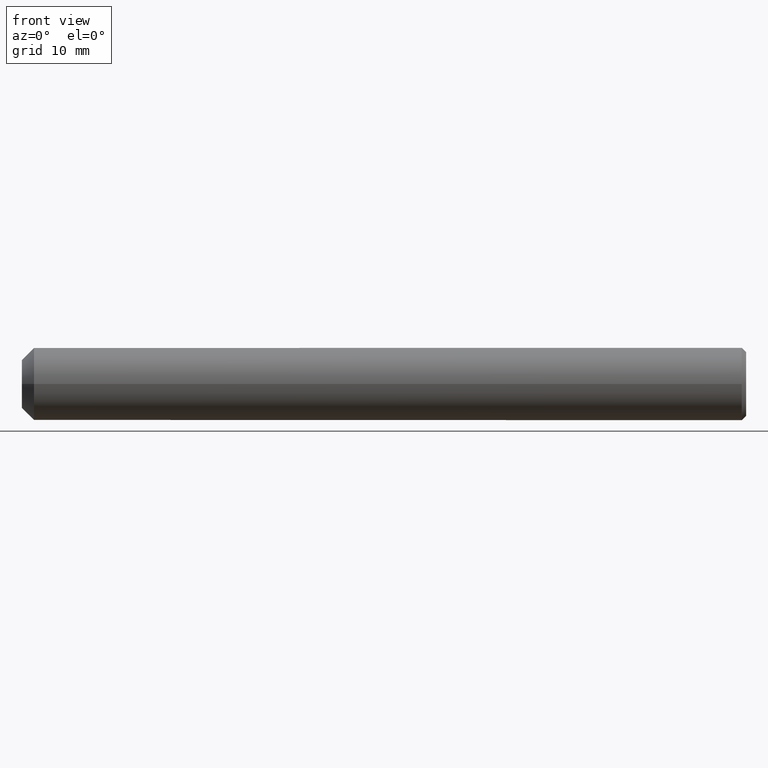
[diagram: clean part render]
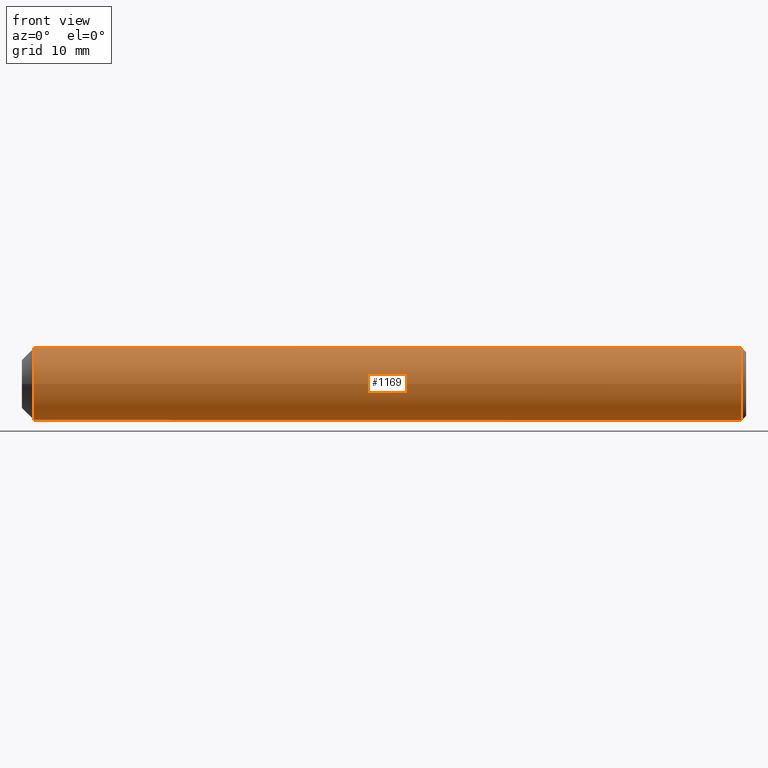
[diagram: same view with one face highlighted and labeled with its STEP entity id]
A machine part, front view. The second image highlights one B-rep face of the part: STEP entity #1169.
In plain terms, the highlighted cylindrical surface (bore or boss wall) has radius 5 mm, axis along (-1, -0, -0).
Its self-contained STEP definition (entity closure, byte-faithful):
#781 = EDGE_LOOP ( 'NONE', ( #7913 ) ) ;
#1169 = ADVANCED_FACE ( 'NONE', ( #4725, #10792 ), #3868, .T. ) ;
#1372 = CARTESIAN_POINT ( 'NONE',  ( 100.0000000000000000, 0.0000000000000000000, 0.0000000000000000000 ) ) ;
#1612 = DIRECTION ( 'NONE',  ( -1.000000000000000000, -0.0000000000000000000, -0.0000000000000000000 ) ) ;
#3078 = CARTESIAN_POINT ( 'NONE',  ( 99.40000000000000600, 0.0000000000000000000, -5.000000000000000000 ) ) ;
#3551 = DIRECTION ( 'NONE',  ( -1.000000000000000000, 0.0000000000000000000, 0.0000000000000000000 ) ) ;
#3577 = DIRECTION ( 'NONE',  ( -1.000000000000000000, 2.701778727171049500E-017, -0.0000000000000000000 ) ) ;
#3868 = CYLINDRICAL_SURFACE ( 'NONE', #17798, 5.000000000000000000 ) ;
#4436 = EDGE_CURVE ( 'NONE', #17273, #17273, #16640, .T. ) ;
#4725 = FACE_OUTER_BOUND ( 'NONE', #16742, .T. ) ;
#5194 = EDGE_CURVE ( 'NONE', #12914, #12914, #10947, .T. ) ;
#6284 = DIRECTION ( 'NONE',  ( 0.0000000000000000000, 0.0000000000000000000, -1.000000000000000000 ) ) ;
#6365 = CARTESIAN_POINT ( 'NONE',  ( 1.679999999999973100, -4.538988261647290200E-017, 0.0000000000000000000 ) ) ;
#7913 = ORIENTED_EDGE ( 'NONE', *, *, #4436, .F. ) ;
#10792 = FACE_OUTER_BOUND ( 'NONE', #781, .T. ) ;
#10947 = CIRCLE ( 'NONE', #17955, 5.000000000000000000 ) ;
#11052 = DIRECTION ( 'NONE',  ( 0.0000000000000000000, 0.0000000000000000000, 1.000000000000000000 ) ) ;
#11353 = AXIS2_PLACEMENT_3D ( 'NONE', #6365, #3577, #13223 ) ;
#12632 = ORIENTED_EDGE ( 'NONE', *, *, #5194, .T. ) ;
#12658 = CARTESIAN_POINT ( 'NONE',  ( 1.679999999999972800, -4.999999999999999100, 0.0000000000000000000 ) ) ;
#12914 = VERTEX_POINT ( 'NONE', #3078 ) ;
#13202 = CARTESIAN_POINT ( 'NONE',  ( 99.40000000000000600, 0.0000000000000000000, 0.0000000000000000000 ) ) ;
#13223 = DIRECTION ( 'NONE',  ( -4.336808689942018400E-017, -1.000000000000000000, 0.0000000000000000000 ) ) ;
#16640 = CIRCLE ( 'NONE', #11353, 4.999999999999999100 ) ;
#16742 = EDGE_LOOP ( 'NONE', ( #12632 ) ) ;
#17273 = VERTEX_POINT ( 'NONE', #12658 ) ;
#17798 = AXIS2_PLACEMENT_3D ( 'NONE', #1372, #1612, #11052 ) ;
#17955 = AXIS2_PLACEMENT_3D ( 'NONE', #13202, #3551, #6284 ) ;